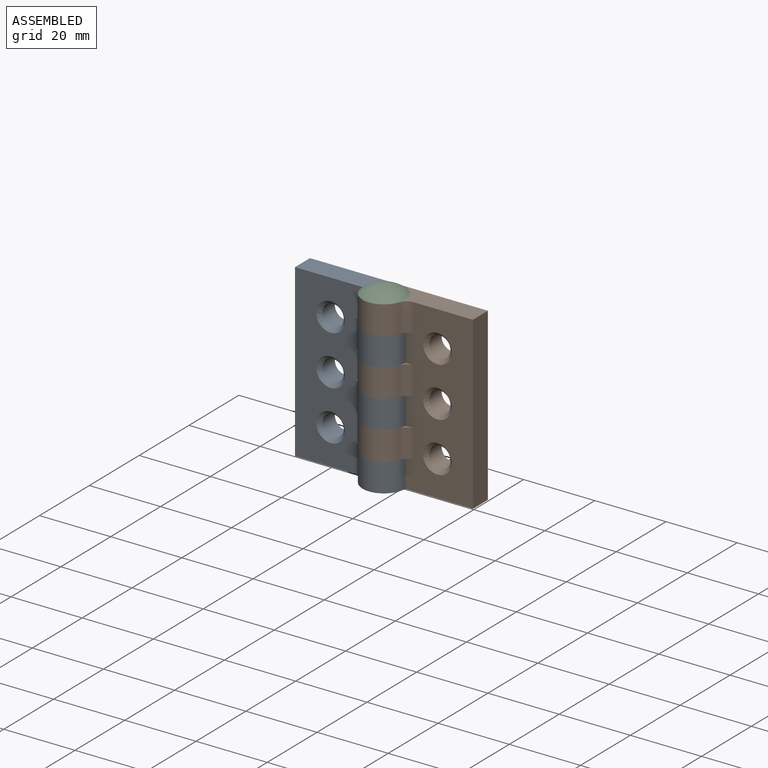
[diagram: assembled view]
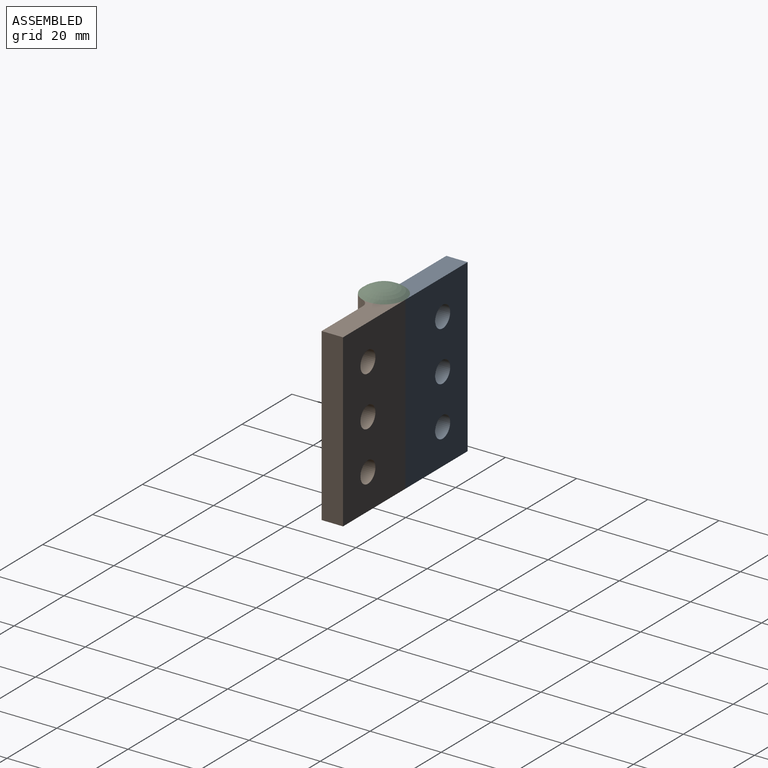
[diagram: assembled view, second angle]
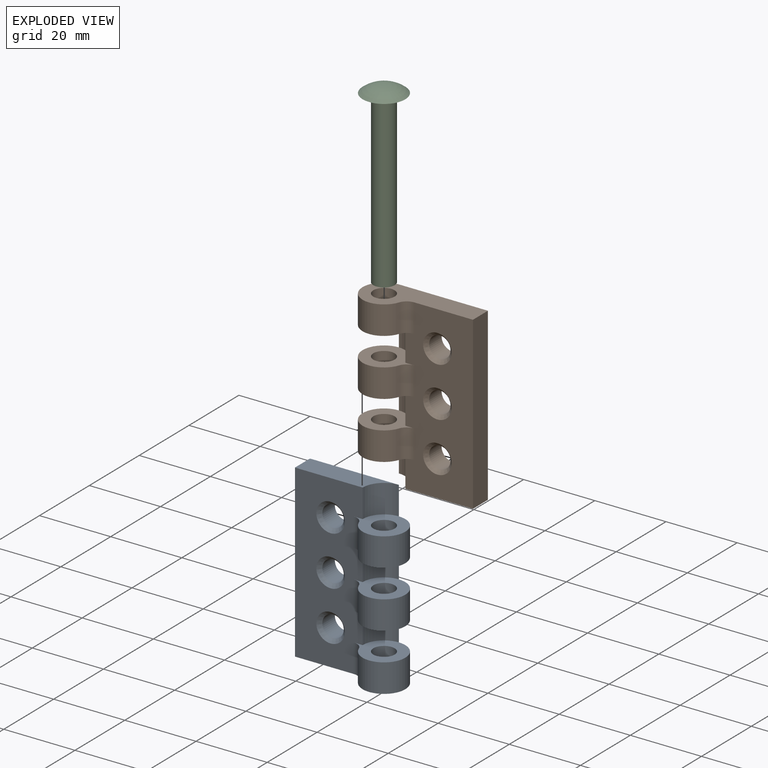
[diagram: exploded view]
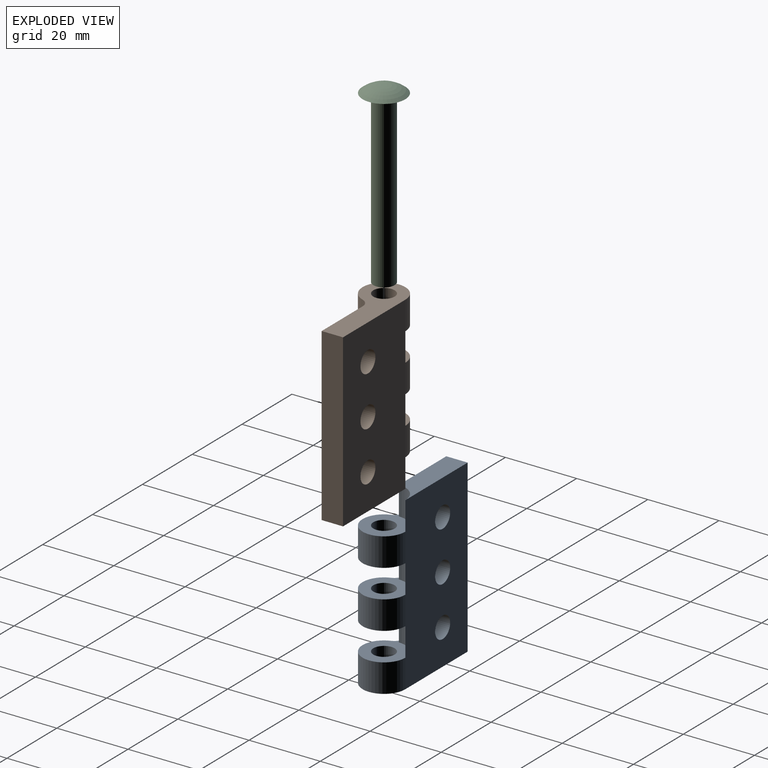
[diagram: exploded view, second angle]
ASSEMBLY  parts=3 mates=2
PART A: 28 faces, bbox 31x12x48 mm
  f0: plane 14.49x12mm, normal (0,0,-1), area 85.9mm2, adj f1,f2,f6,f13,f21
  f1: cylinder r=6mm len=12mm, axis (0,0,-1), area 209.9mm2, adj f0,f3,f7,f21
  f2: cylinder r=3mm len=8mm, axis (0,0,-1), area 150.8mm2, adj f0,f3
  f3: plane 14.49x12mm, normal (0,0,1), area 85.9mm2, adj f1,f2,f4,f6,f21
  f4: cylinder r=6mm len=8mm, axis (0,0,-1), area 75.4mm2, adj f3,f6,f7,f8
  f5: plane 48x6mm, normal (-1,0,0), area 288mm2, adj f6,f7,f8,f17
  f6: plane 48x19mm, normal (0,-1,0), area 701.6mm2, adj f0,f3,f4,f5,f8,f9,f12,f13
  f7: plane 48x25mm, normal (0,1,0), area 1115.2mm2, adj f1,f4,f5,f8,f10,f13,f14,f17
  f8: plane 25x6mm, normal (0,0,1), area 121.7mm2, adj f4,f5,f6,f7
  f9: plane 14.49x12mm, normal (0,0,-1), area 85.9mm2, adj f6,f10,f11,f18,f20
  f10: cylinder r=6mm len=12mm, axis (0,0,-1), area 209.9mm2, adj f7,f9,f12,f20
  f11: cylinder r=3mm len=8mm, axis (0,0,-1), area 150.8mm2, adj f9,f12
  f12: plane 14.49x12mm, normal (0,0,1), area 85.9mm2, adj f6,f10,f11,f13,f20
  f13: cylinder r=6mm len=8mm, axis (0,0,-1), area 75.4mm2, adj f0,f6,f7,f12
  f14: cylinder r=6mm len=12mm, axis (0,0,-1), area 209.9mm2, adj f7,f16,f17,f19
  f15: cylinder r=3mm len=8mm, axis (0,0,-1), area 150.8mm2, adj f16,f17
  f16: plane 14.49x12mm, normal (0,0,1), area 85.9mm2, adj f6,f14,f15,f18,f19
  f17: plane 31x12mm, normal (0,0,-1), area 207.6mm2, adj f5,f6,f7,f14,f15,f19
  f18: cylinder r=6mm len=8mm, axis (0,0,-1), area 75.4mm2, adj f6,f7,f9,f16
  f19: cylinder r=3mm len=8mm, axis (0,0,-1), area 29.5mm2, adj f6,f14,f16,f17
  f20: cylinder r=3mm len=8mm, axis (0,0,-1), area 29.5mm2, adj f6,f9,f10,f12
  f21: cylinder r=3mm len=8mm, axis (0,0,-1), area 29.5mm2, adj f0,f1,f3,f6
  f22: cylinder r=3mm len=6mm, axis (0,-1,0), area 94.2mm2, adj f7,f27
  f23: cylinder r=3mm len=6mm, axis (0,-1,0), area 94.2mm2, adj f7,f26
  f24: cylinder r=3mm len=6mm, axis (0,-1,0), area 94.2mm2, adj f7,f25
  f25: cone r=4mm half-angle=45deg, axis (0,-1,0), area 31.1mm2, adj f6,f24
  f26: cone r=4mm half-angle=45deg, axis (0,-1,0), area 31.1mm2, adj f6,f23
  f27: cone r=4mm half-angle=45deg, axis (0,-1,0), area 31.1mm2, adj f6,f22
PART B: same geometry as A
PART C: 5 faces, bbox 12x12x50 mm
  f0: cylinder r=3mm len=48mm, axis (0,0,-1), area 904.8mm2, adj f1,f3
  f1: plane 6x6mm, normal (0,0,1), area 28.3mm2, adj f0
  f2: plane 1.42x1.42mm, normal (0,0,-1), area 1.6mm2, adj f4
  f3: plane 12x12mm, normal (0,0,1), area 84.8mm2, adj f0,f4
  f4: torus R=0.71mm, axis (0,0,-1), area 126.3mm2, adj f2,f3
PLACE A rot(axis=(0,0,1),0deg) t=(-33.93,-8.09,20.73)mm
PLACE B rot(axis=(0,1,0),180deg) t=(-8.93,-8.09,4.73)mm fixed
PLACE C rot(axis=(1,0,0),180deg) t=(-21.43,-11.09,36.73)mm
MATE revolute B.f1 <-> A.f1  axis (0,0,-1) through (-21.43,-11.09,-3.27)mm
MATE revolute C.f4 <-> B.f1  axis (0,0,-1) through (-21.43,-11.09,36.73)mm
